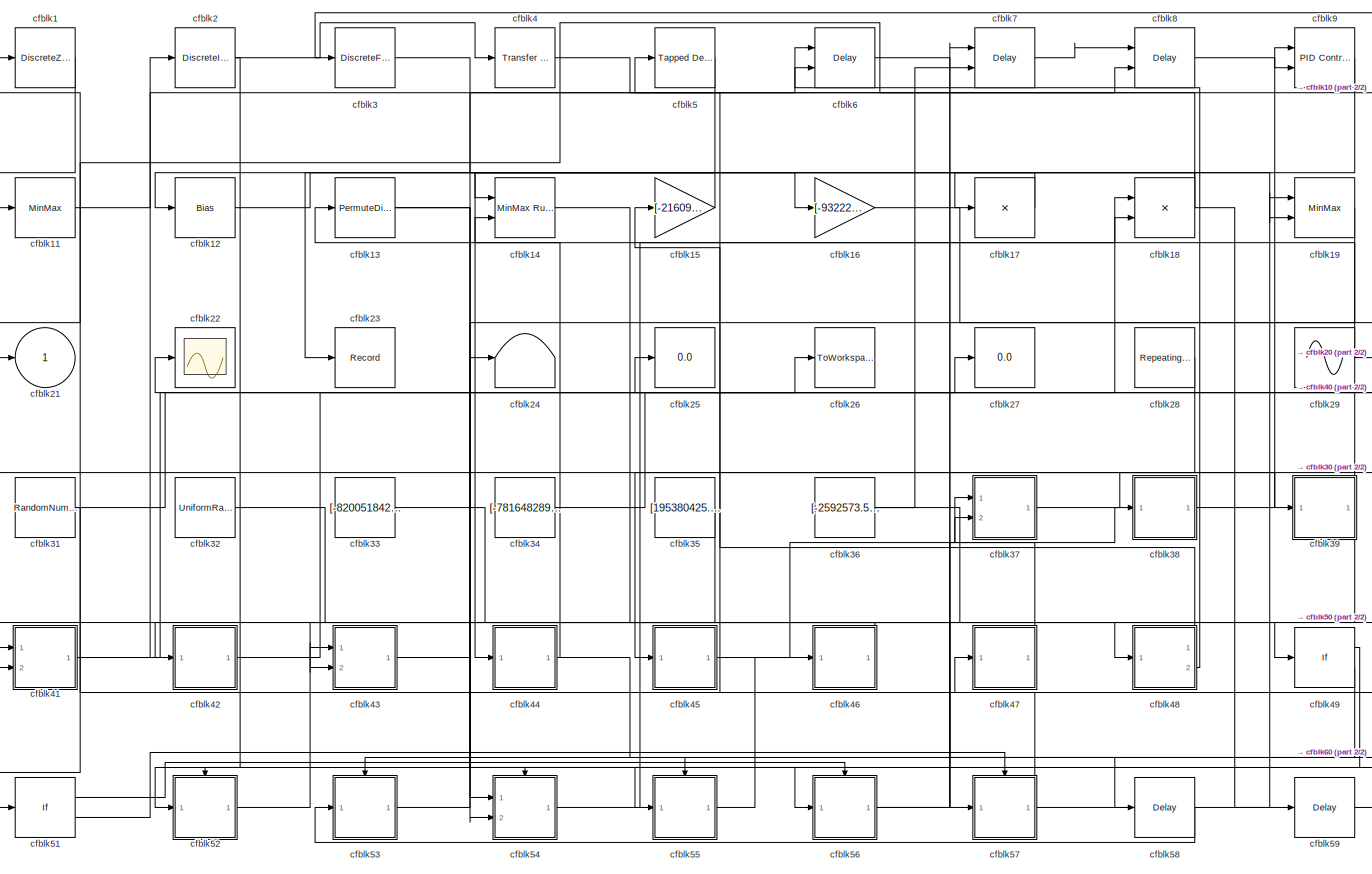
[diagram: root canvas - part 1/2, most of the canvas]
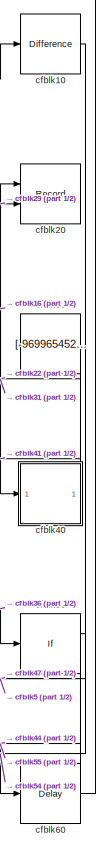
[diagram: root canvas - part 2/2, right side, full height]
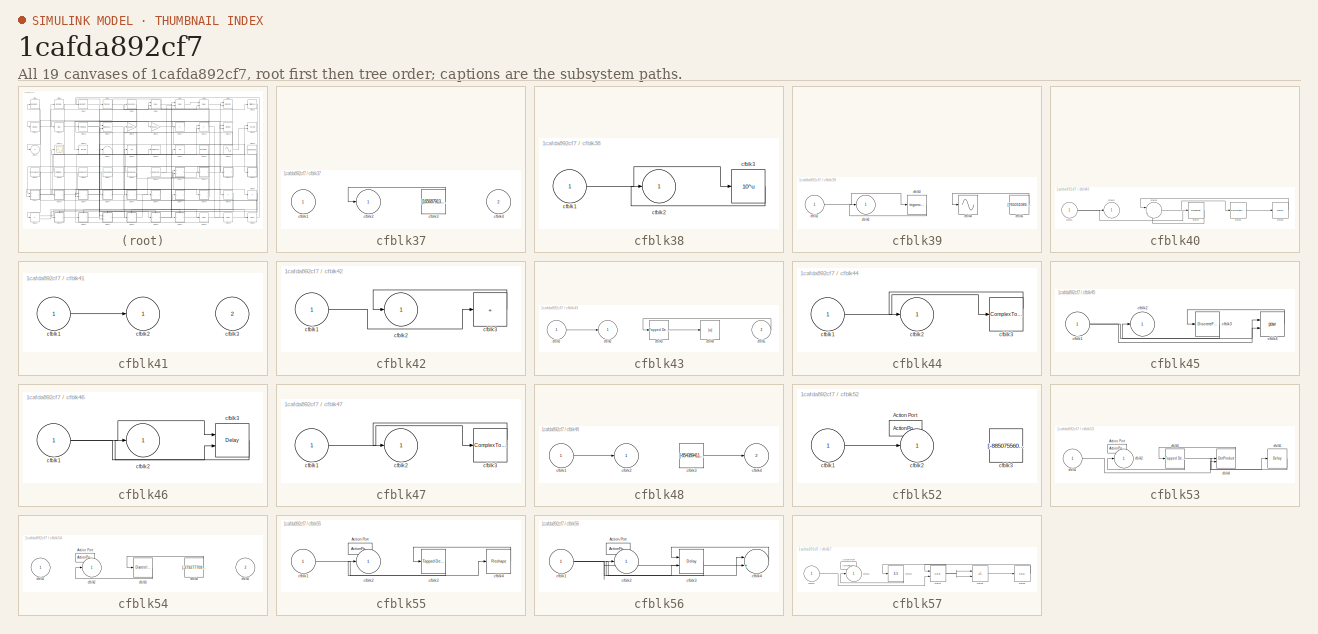
[diagram: thumbnail index - all 19 canvases of the model, root first then tree order]
MODEL slx_1cafda892cf7
KIND model
CONFIG AbsTol = auto
CONFIG EnableMultiTasking = off
CONFIG FixedStep = auto
CONFIG MaxStep = auto
CONFIG MinStep = auto
CONFIG RelTol = 1e-3
CONFIG SampleTimeConstraint = Unconstrained
CONFIG SolverName = VariableStepAuto
CONFIG StartTime = 0.0
CONFIG StopTime = 10.0
BLOCK [DiscreteZeroPole] cfblk1
  Gain = 1
  Poles = [0 0.5]
BLOCK [Reference] cfblk10  REF=simulink/Discrete/Difference
  Ports = [1, 1]
  SourceBlock = simulink/Discrete/Difference
  SourceProductBaseCode = SL
  SourceType = Difference
BLOCK [MinMax] cfblk11
  Ports = [1, 1]
BLOCK [Bias] cfblk12
  Bias = [578324723.559381]
  SaturateOnIntegerOverflow = off
BLOCK [PermuteDimensions] cfblk13
BLOCK [Reference] cfblk14  REF=simulink/Math
Operations/MinMax
Running
Resettable
  Ports = [2, 1]
  SourceBlock = simulink/Math\nOperations/MinMax\nRunning\nResettable
  SourceProductBaseCode = SL
  SourceType = MinMax Running Resettable
BLOCK [Gain] cfblk15
  Gain = [-216092786.462482]
BLOCK [Gain] cfblk16
  Gain = [-932226250.453877]
BLOCK [Product] cfblk17
  Inputs = *
  Ports = [1, 1]
BLOCK [Product] cfblk18
  Inputs = **
  Ports = [2, 1]
BLOCK [MinMax] cfblk19
  Function = max
  Inputs = 2
  Ports = [2, 1]
BLOCK [DiscreteIntegrator] cfblk2
  ICPrevOutput = DiscIntNeverNeededParam
  ICPrevScaledInput = DiscIntNeverNeededParam
  InitialConditionSetting = Auto
  Ports = [1, 1]
BLOCK [Record] cfblk20
  CompatibilityTag = XY
  FileSettingsInternal = {"entries":[{"content":{"excelSettings":{"content":{},"type":"Streamout.ExcelSettings"}},"type":"Streamout.FileSettingStorage","uuid":"06ed781e-12cb-4e05-8bb1-7b1aca927446"}],"packageUris":["http://schema.mathworks.com/mf0/streamout_blocks/R2020a"],"version":"1.0"}
  Layout = [1 1]
  Ports = [2]
  SignalsInternal = {"entries":[{"content":{"signals":[{"content":{"blockPath":["sampleModel163/cfblk20"],"channel":[],"dimensions":[1],"domain":"sampleModel163/cfblk20","lineColor":"#a2142f","plots":[1],"port":1,"sid":[""],"signalID":6164,"signalName":"cfblk31"},"type":"RecordBlkView.Signal","uuid":"f8e4e534-be1f-4f40-ab34-d8d78202847f"},{"content":{"blockPath":["sampleModel163/cfblk20"],"channel":[],"dimensions":[1...<+383ch>
  VisualizationBindings = {"xyplotplugin":{"info":[{"series":[{"bindingParametersList":[{"parameter":"X-Axis","signalID":6164,"signalName":"cfblk31"},{"parameter":"Y-Axis","signalID":6168,"signalName":"cfblk29"}],"seriesID":65213}],"subplotID":1}]}}
BLOCK [Outport] cfblk21
BLOCK [Scope] cfblk22
  Floating = off
  NumInputPorts = 1
  Ports = [1]
BLOCK [Record] cfblk23
  FileSettingsInternal = {"entries":[{"content":{"excelSettings":{"content":{},"type":"Streamout.ExcelSettings"}},"type":"Streamout.FileSettingStorage","uuid":"58f81f9b-3091-4bfb-8b59-2bbb88b916ca"}],"packageUris":["http://schema.mathworks.com/mf0/streamout_blocks/R2020a"],"version":"1.0"}
  Ports = [1]
  SignalsInternal = {"entries":[{"content":{"signals":[{"content":{"blockPath":["sampleModel163/cfblk23"],"channel":[],"dimensions":[1],"domain":"sampleModel163/cfblk23","lineColor":"#77ac30","plots":[1],"port":1,"sid":[""],"signalID":6172,"signalName":"cfblk15"},"type":"RecordBlkView.Signal","uuid":"70741671-3e54-430a-8378-0fd8a2290cdd"}]},"type":"RecordBlkView.InputSignals","uuid":"9b4d039f-f325-4278-9c4c-6e897f4be...<+97ch>
  VisualizationBindings = {"sparklinesplugin":{"info":[{"bindingParametersList":[],"subplotID":1}]}}
BLOCK [Terminator] cfblk24
BLOCK [Display] cfblk25
  Decimation = 1
  Ports = [1]
BLOCK [ToWorkspace] cfblk26
  FixptAsFi = on
  MaxDataPoints = inf
  Ports = [1]
  SampleTime = -1
  SaveFormat = Timeseries
  VariableName = sjdmseh
BLOCK [Display] cfblk27
  Decimation = 1
  Ports = [1]
BLOCK [Reference] cfblk28  REF=simulink/Sources/Repeating
Sequence
Interpolated
  Ports = [0, 1]
  SourceBlock = simulink/Sources/Repeating\nSequence\nInterpolated
  SourceProductBaseCode = SL
  SourceType = Repeating Sequence Interpolated
BLOCK [Sin] cfblk29
  Amplitude = [237996314.425898]
  Bias = [21398783.004836]
  Ports = [0, 1]
  SampleTime = 0
BLOCK [DiscreteFir] cfblk3
  InputPortMap = u0
  OutputPortMap = o0
  Ports = [1, 1]
  SampleTime = 1
BLOCK [Constant] cfblk30
  SampleTime = 1
  Value = [-969965452.838120]
BLOCK [RandomNumber] cfblk31
  Mean = [-19567.481043]
  SampleTime = 0.1
  Seed = [599770509.000000]
  Variance = [38445.475397]
BLOCK [UniformRandomNumber] cfblk32
  Maximum = [206796190.518302]
  Minimum = [-4062021500.164922]
  SampleTime = 0.1
  Seed = [57462466.000000]
BLOCK [Constant] cfblk33
  SampleTime = 1
  Value = [-820051842.125414]
BLOCK [Constant] cfblk34
  SampleTime = 1
  Value = [-781648289.836269]
BLOCK [Constant] cfblk35
  SampleTime = 1
  Value = [195380425.096264]
BLOCK [Constant] cfblk36
  SampleTime = 1
  Value = [-2592573.518929]
BLOCK [SubSystem] cfblk37
  Ports = [2, 1]
  RequestExecContextInheritance = off
BLOCK [Inport] cfblk37/cfblk1
BLOCK [Outport] cfblk37/cfblk2
BLOCK [Constant] cfblk37/cfblk3
  SampleTime = 1
  Value = [165687913.823131]
BLOCK [Inport] cfblk37/cfblk4
  Port = 2
BLOCK [SubSystem] cfblk38
  Ports = [1, 1]
  RequestExecContextInheritance = off
BLOCK [Inport] cfblk38/cfblk1
BLOCK [Outport] cfblk38/cfblk2
BLOCK [Math] cfblk38/cfblk3
  Operator = 10^u
  Ports = [1, 1]
BLOCK [SubSystem] cfblk39
  Ports = [1, 1]
  RequestExecContextInheritance = off
BLOCK [Inport] cfblk39/cfblk1
BLOCK [Outport] cfblk39/cfblk2
BLOCK [Trigonometry] cfblk39/cfblk3
  Ports = [1, 1]
BLOCK [Sin] cfblk39/cfblk4
  Ports = [1, 1]
  SampleTime = 0
  TimeSource = Use external signal
BLOCK [Constant] cfblk39/cfblk5
  SampleTime = 1
  Value = [765031089.113813]
BLOCK [Reference] cfblk4  REF=simulink/Discrete/Transfer Fcn
Lead or Lag
  Ports = [1, 1]
  SourceBlock = simulink/Discrete/Transfer Fcn\nLead or Lag
  SourceProductBaseCode = SL
  SourceType = Lead or Lag Compensator
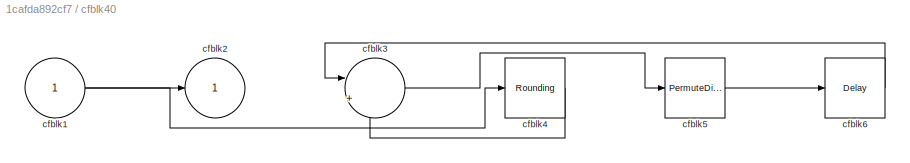
BLOCK [SubSystem] cfblk40
  Ports = [1, 1]
  RequestExecContextInheritance = off
BLOCK [Inport] cfblk40/cfblk1
BLOCK [Outport] cfblk40/cfblk2
BLOCK [Sum] cfblk40/cfblk3
  Inputs = |++
  Ports = [2, 1]
BLOCK [Rounding] cfblk40/cfblk4
BLOCK [PermuteDimensions] cfblk40/cfblk5
BLOCK [Delay] cfblk40/cfblk6
  InputPortMap = u0
  Ports = [1, 1]
  SampleTime = 1
BLOCK [SubSystem] cfblk41
  Ports = [2, 1]
  RequestExecContextInheritance = off
BLOCK [Inport] cfblk41/cfblk1
BLOCK [Outport] cfblk41/cfblk2
BLOCK [Inport] cfblk41/cfblk3
  Port = 2
BLOCK [SubSystem] cfblk42
  Ports = [1, 1]
  RequestExecContextInheritance = off
BLOCK [Inport] cfblk42/cfblk1
BLOCK [Outport] cfblk42/cfblk2
BLOCK [Sum] cfblk42/cfblk3
  IconShape = rectangular
  Inputs = +
  Ports = [1, 1]
BLOCK [SubSystem] cfblk43
  Ports = [2, 1]
  RequestExecContextInheritance = off
BLOCK [Inport] cfblk43/cfblk1
BLOCK [Outport] cfblk43/cfblk2
BLOCK [Reference] cfblk43/cfblk3  REF=simulink/Discrete/Tapped Delay
  Ports = [1, 1]
  SourceBlock = simulink/Discrete/Tapped Delay
  SourceProductBaseCode = SL
  SourceType = Tapped Delay Line
BLOCK [Abs] cfblk43/cfblk4
  SaturateOnIntegerOverflow = off
BLOCK [Inport] cfblk43/cfblk5
  Port = 2
BLOCK [SubSystem] cfblk44
  Ports = [1, 1]
  RequestExecContextInheritance = off
BLOCK [Inport] cfblk44/cfblk1
BLOCK [Outport] cfblk44/cfblk2
BLOCK [ComplexToMagnitudeAngle] cfblk44/cfblk3
  Ports = [1, 2]
BLOCK [SubSystem] cfblk45
  Ports = [1, 1]
  RequestExecContextInheritance = off
BLOCK [Inport] cfblk45/cfblk1
BLOCK [Outport] cfblk45/cfblk2
BLOCK [DiscreteFilter] cfblk45/cfblk3
  InputPortMap = u0
  Ports = [1, 1]
  SampleTime = 1
BLOCK [Math] cfblk45/cfblk4
  Operator = pow
  Ports = [2, 1]
BLOCK [SubSystem] cfblk46
  Ports = [1, 1]
  RequestExecContextInheritance = off
BLOCK [Inport] cfblk46/cfblk1
BLOCK [Outport] cfblk46/cfblk2
BLOCK [Delay] cfblk46/cfblk3
  DelayLengthSource = Input port
  InputPortMap = u0,p1
  Ports = [2, 1]
  SampleTime = 1
BLOCK [SubSystem] cfblk47
  Ports = [1, 1]
  RequestExecContextInheritance = off
BLOCK [Inport] cfblk47/cfblk1
BLOCK [Outport] cfblk47/cfblk2
BLOCK [ComplexToMagnitudeAngle] cfblk47/cfblk3
  Ports = [1, 2]
BLOCK [SubSystem] cfblk48
  Ports = [1, 2]
  RequestExecContextInheritance = off
BLOCK [Inport] cfblk48/cfblk1
BLOCK [Outport] cfblk48/cfblk2
BLOCK [Constant] cfblk48/cfblk3
  SampleTime = 1
  Value = [-854389411.145133]
BLOCK [Outport] cfblk48/cfblk4
  Port = 2
BLOCK [If] cfblk49
  IfExpression = u1 >= 0
  Ports = [1, 2]
  SampleTime = 1
BLOCK [Reference] cfblk5  REF=simulink/Discrete/Tapped Delay
  Ports = [1, 1]
  SourceBlock = simulink/Discrete/Tapped Delay
  SourceProductBaseCode = SL
  SourceType = Tapped Delay Line
BLOCK [If] cfblk50
  IfExpression = u1 >= 0
  Ports = [1, 2]
  SampleTime = 1
BLOCK [If] cfblk51
  IfExpression = u1 >= 0
  Ports = [1, 2]
  SampleTime = 1
BLOCK [SubSystem] cfblk52
  Ports = [1, 1, 0, 0, 0, 0, 0, 1]
  RequestExecContextInheritance = off
  TreatAsAtomicUnit = on
BLOCK [ActionPort] cfblk52/Action Port
  ActionPortLabel = if(u1 >= 0)
BLOCK [Inport] cfblk52/cfblk1
BLOCK [Outport] cfblk52/cfblk2
BLOCK [Constant] cfblk52/cfblk3
  SampleTime = 1
  Value = [-885075560.792132]
BLOCK [SubSystem] cfblk53
  Ports = [1, 1, 0, 0, 0, 0, 0, 1]
  RequestExecContextInheritance = off
  TreatAsAtomicUnit = on
BLOCK [ActionPort] cfblk53/Action Port
  ActionPortLabel = else
BLOCK [Inport] cfblk53/cfblk1
BLOCK [Outport] cfblk53/cfblk2
BLOCK [Reference] cfblk53/cfblk3  REF=simulink/Discrete/Tapped Delay
  Ports = [1, 1]
  SourceBlock = simulink/Discrete/Tapped Delay
  SourceProductBaseCode = SL
  SourceType = Tapped Delay Line
BLOCK [DotProduct] cfblk53/cfblk4
  OutDataTypeStr = Inherit: Inherit via internal rule
BLOCK [Delay] cfblk53/cfblk5
  InputPortMap = u0
  Ports = [1, 1]
BLOCK [SubSystem] cfblk54
  Ports = [2, 1, 0, 0, 0, 0, 0, 1]
  RequestExecContextInheritance = off
  TreatAsAtomicUnit = on
BLOCK [ActionPort] cfblk54/Action Port
  ActionPortLabel = if(u1 >= 0)
BLOCK [Inport] cfblk54/cfblk1
BLOCK [Outport] cfblk54/cfblk2
BLOCK [DiscreteIntegrator] cfblk54/cfblk3
  ICPrevOutput = DiscIntNeverNeededParam
  ICPrevScaledInput = DiscIntNeverNeededParam
  InitialConditionSetting = Auto
  Ports = [1, 1]
  SampleTime = -1
BLOCK [Constant] cfblk54/cfblk4
  SampleTime = 1
  Value = [-379277709.233137]
BLOCK [Inport] cfblk54/cfblk5
  Port = 2
BLOCK [SubSystem] cfblk55
  Ports = [1, 1, 0, 0, 0, 0, 0, 1]
  RequestExecContextInheritance = off
  TreatAsAtomicUnit = on
BLOCK [ActionPort] cfblk55/Action Port
  ActionPortLabel = else
BLOCK [Inport] cfblk55/cfblk1
BLOCK [Outport] cfblk55/cfblk2
BLOCK [Reference] cfblk55/cfblk3  REF=simulink/Discrete/Tapped Delay
  Ports = [1, 1]
  SourceBlock = simulink/Discrete/Tapped Delay
  SourceProductBaseCode = SL
  SourceType = Tapped Delay Line
BLOCK [Reshape] cfblk55/cfblk4
  Ports = [1, 1]
BLOCK [SubSystem] cfblk56
  Ports = [1, 1, 0, 0, 0, 0, 0, 1]
  RequestExecContextInheritance = off
  TreatAsAtomicUnit = on
BLOCK [ActionPort] cfblk56/Action Port
  ActionPortLabel = if(u1 >= 0)
BLOCK [Inport] cfblk56/cfblk1
BLOCK [Outport] cfblk56/cfblk2
BLOCK [Delay] cfblk56/cfblk3
  InputPortMap = u0,e6
  Ports = [2, 1]
  ShowEnablePort = on
BLOCK [Sum] cfblk56/cfblk4
  Inputs = |++
  Ports = [2, 1]
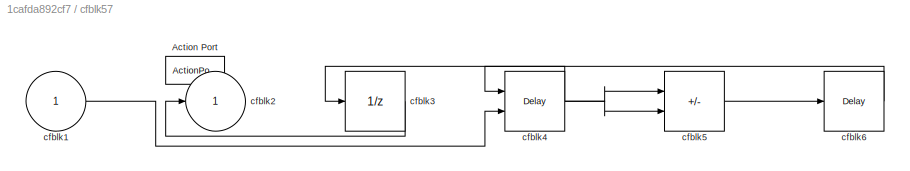
BLOCK [SubSystem] cfblk57
  Ports = [1, 1, 0, 0, 0, 0, 0, 1]
  RequestExecContextInheritance = off
  TreatAsAtomicUnit = on
BLOCK [ActionPort] cfblk57/Action Port
  ActionPortLabel = else
BLOCK [Inport] cfblk57/cfblk1
BLOCK [Outport] cfblk57/cfblk2
BLOCK [UnitDelay] cfblk57/cfblk3
  HasFrameUpgradeWarning = on
  SampleTime = -1
BLOCK [Delay] cfblk57/cfblk4
  InputPortMap = u0,e6
  Ports = [2, 1]
  ShowEnablePort = on
BLOCK [Sum] cfblk57/cfblk5
  IconShape = rectangular
  Inputs = +-
  Ports = [2, 1]
BLOCK [Delay] cfblk57/cfblk6
  InputPortMap = u0
  Ports = [1, 1]
BLOCK [Delay] cfblk58
  InputPortMap = u0
  Ports = [1, 1]
  SampleTime = 1
BLOCK [Delay] cfblk59
  InputPortMap = u0
  Ports = [1, 1]
  SampleTime = 1
BLOCK [Delay] cfblk6
  DelayLengthSource = Input port
  InputPortMap = u0,p1
  Ports = [2, 1]
  SampleTime = 1
BLOCK [Delay] cfblk60
  InputPortMap = u0
  Ports = [1, 1]
  SampleTime = 1
BLOCK [Delay] cfblk7
  InputPortMap = u0,e6
  Ports = [2, 1]
  SampleTime = 1
  ShowEnablePort = on
BLOCK [Delay] cfblk8
  DelayLengthSource = Input port
  InputPortMap = u0,p1
  Ports = [2, 1]
  SampleTime = 1
BLOCK [Reference] cfblk9  REF=slpidlib/PID Controller (2DOF)
  Ports = [2, 1]
  SourceBlock = slpidlib/PID Controller (2DOF)
  SourceProductBaseCode = SL
  SourceType = PID 2dof
LINE cfblk10:1 -> cfblk47:1
LINE cfblk11:1 -> cfblk2:1
LINE cfblk12:1 -> cfblk16:1
NET cfblk13:1 -> cfblk54:1, cfblk55:1
LINE cfblk14:1 -> cfblk48:1
LINE cfblk15:1 -> cfblk23:1
LINE cfblk16:1 -> cfblk40:1
LINE cfblk17:1 -> cfblk12:1
NET cfblk18:1 -> cfblk14:1, cfblk21:1, cfblk59:1
LINE cfblk19:1 -> cfblk54:2
LINE cfblk1:1 -> cfblk11:1
LINE cfblk28:1 -> cfblk45:1
NET cfblk29:1 -> cfblk13:1, cfblk20:2
NET cfblk2:1 -> cfblk4:1, cfblk52:1
LINE cfblk30:1 -> cfblk41:1
NET cfblk31:1 -> cfblk20:1, cfblk51:1
LINE cfblk32:1 -> cfblk49:1
LINE cfblk33:1 -> cfblk57:1
LINE cfblk34:1 -> cfblk26:1
LINE cfblk35:1 -> cfblk41:2
NET cfblk36:1 -> cfblk50:1, cfblk7:2
LINE cfblk37/cfblk3:1 -> cfblk37/cfblk2:1
LINE cfblk37:1 -> cfblk39:1
LINE cfblk38/cfblk1:1 -> cfblk38/cfblk3:1
LINE cfblk38/cfblk3:1 -> cfblk38/cfblk2:1
LINE cfblk38:1 -> cfblk9:1
LINE cfblk39/cfblk1:1 -> cfblk39/cfblk3:1
LINE cfblk39/cfblk3:1 -> cfblk39/cfblk2:1
LINE cfblk39/cfblk5:1 -> cfblk39/cfblk4:1
NET cfblk39:1 -> cfblk25:1, cfblk43:2
LINE cfblk3:1 -> cfblk19:2
NET cfblk40/cfblk1:1 -> cfblk40/cfblk2:1, cfblk40/cfblk4:1
LINE cfblk40/cfblk3:1 -> cfblk40/cfblk5:1
LINE cfblk40/cfblk4:1 -> cfblk40/cfblk3:2
LINE cfblk40/cfblk5:1 -> cfblk40/cfblk6:1
LINE cfblk40/cfblk6:1 -> cfblk40/cfblk3:1
LINE cfblk40:1 -> cfblk22:1
LINE cfblk41/cfblk1:1 -> cfblk41/cfblk2:1
NET cfblk41:1 -> cfblk10:1, cfblk27:1
LINE cfblk42/cfblk1:1 -> cfblk42/cfblk3:1
LINE cfblk42/cfblk3:1 -> cfblk42/cfblk2:1
LINE cfblk42:1 -> cfblk18:2
LINE cfblk43/cfblk1:1 -> cfblk43/cfblk2:1
LINE cfblk43/cfblk3:1 -> cfblk43/cfblk4:1
LINE cfblk43/cfblk5:1 -> cfblk43/cfblk3:1
NET cfblk43:1 -> cfblk56:1, cfblk6:1
LINE cfblk44/cfblk1:1 -> cfblk44/cfblk3:1
LINE cfblk44/cfblk3:1 -> cfblk44/cfblk2:1
NET cfblk44:1 -> cfblk14:2, cfblk60:1
NET cfblk45/cfblk1:1 -> cfblk45/cfblk4:1, cfblk45/cfblk4:2
LINE cfblk45/cfblk3:1 -> cfblk45/cfblk2:1
LINE cfblk45/cfblk4:1 -> cfblk45/cfblk3:1
LINE cfblk45:1 -> cfblk37:1
NET cfblk46/cfblk1:1 -> cfblk46/cfblk3:1, cfblk46/cfblk3:2
LINE cfblk46/cfblk3:1 -> cfblk46/cfblk2:1
LINE cfblk46:1 -> cfblk42:1
LINE cfblk47/cfblk1:1 -> cfblk47/cfblk3:1
LINE cfblk47/cfblk3:1 -> cfblk47/cfblk2:1
LINE cfblk47:1 -> cfblk37:2
LINE cfblk48/cfblk1:1 -> cfblk48/cfblk2:1
LINE cfblk48/cfblk3:1 -> cfblk48/cfblk4:1
LINE cfblk48:1 -> cfblk15:1
LINE cfblk48:2 -> cfblk6:2
LINE cfblk49:1 -> cfblk52:ifaction
LINE cfblk49:2 -> cfblk53:ifaction
LINE cfblk4:1 -> cfblk8:2
LINE cfblk50:1 -> cfblk54:ifaction
LINE cfblk50:2 -> cfblk55:ifaction
LINE cfblk51:1 -> cfblk56:ifaction
LINE cfblk51:2 -> cfblk57:ifaction
LINE cfblk52/cfblk1:1 -> cfblk52/cfblk2:1
LINE cfblk52:1 -> cfblk43:1
LINE cfblk53/cfblk1:1 -> cfblk53/cfblk4:1
NET cfblk53/cfblk3:1 -> cfblk53/cfblk2:1, cfblk53/cfblk5:1
LINE cfblk53/cfblk4:1 -> cfblk53/cfblk3:1
LINE cfblk53/cfblk5:1 -> cfblk53/cfblk4:2
LINE cfblk53:1 -> cfblk24:1
LINE cfblk54/cfblk3:1 -> cfblk54/cfblk2:1
LINE cfblk54/cfblk4:1 -> cfblk54/cfblk3:1
LINE cfblk54:1 -> cfblk18:1
LINE cfblk55/cfblk1:1 -> cfblk55/cfblk4:1
LINE cfblk55/cfblk3:1 -> cfblk55/cfblk2:1
LINE cfblk55/cfblk4:1 -> cfblk55/cfblk3:1
LINE cfblk55:1 -> cfblk46:1
NET cfblk56/cfblk1:1 -> cfblk56/cfblk3:2, cfblk56/cfblk4:1, cfblk56/cfblk4:2
LINE cfblk56/cfblk3:1 -> cfblk56/cfblk2:1
LINE cfblk56/cfblk4:1 -> cfblk56/cfblk3:1
NET cfblk56:1 -> cfblk38:1, cfblk7:1
LINE cfblk57/cfblk1:1 -> cfblk57/cfblk4:2
LINE cfblk57/cfblk3:1 -> cfblk57/cfblk2:1
NET cfblk57/cfblk4:1 -> cfblk57/cfblk3:1, cfblk57/cfblk5:1, cfblk57/cfblk5:2
LINE cfblk57/cfblk5:1 -> cfblk57/cfblk6:1
LINE cfblk57/cfblk6:1 -> cfblk57/cfblk4:1
NET cfblk57:1 -> cfblk19:1, cfblk1:1
LINE cfblk58:1 -> cfblk53:1
LINE cfblk59:1 -> cfblk3:1
LINE cfblk5:1 -> cfblk44:1
LINE cfblk60:1 -> cfblk5:1
LINE cfblk6:1 -> cfblk58:1
LINE cfblk7:1 -> cfblk8:1
LINE cfblk8:1 -> cfblk9:2
LINE cfblk9:1 -> cfblk17:1
note: NET lines group one-source signal fan-out (src -> all destinations, sorted); 1:1 wires keep LINE
